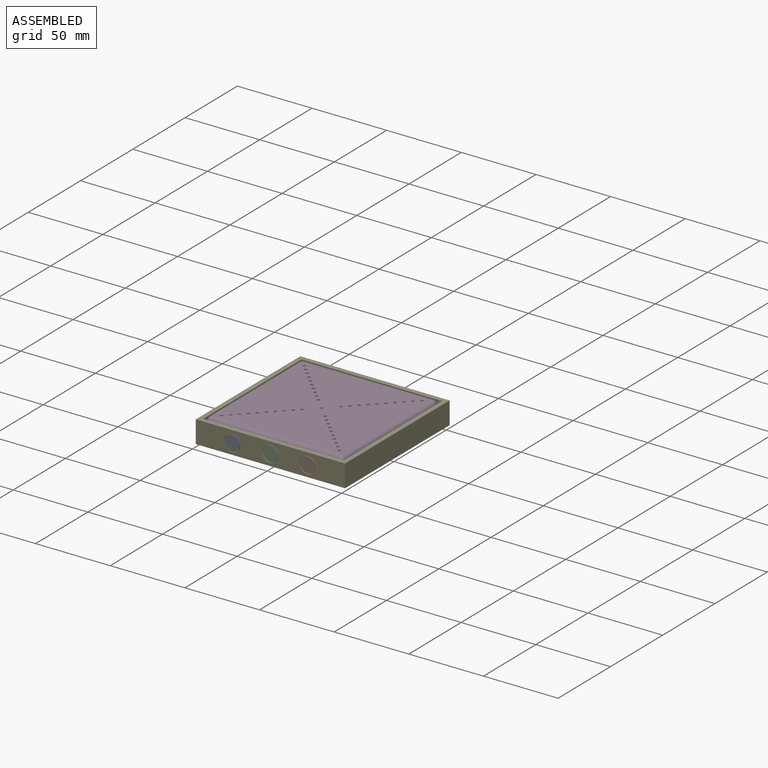
[diagram: assembled view]
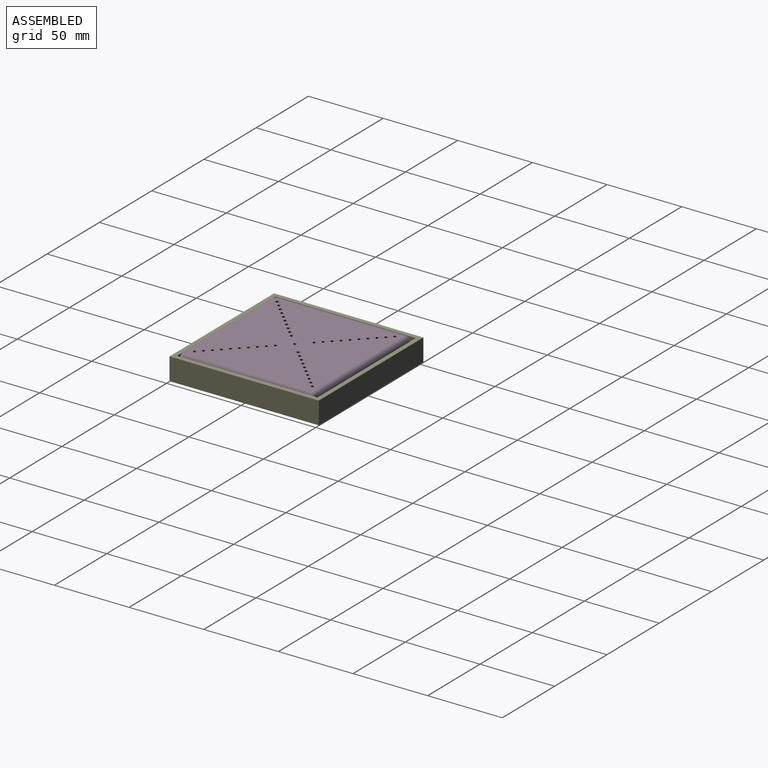
[diagram: assembled view, second angle]
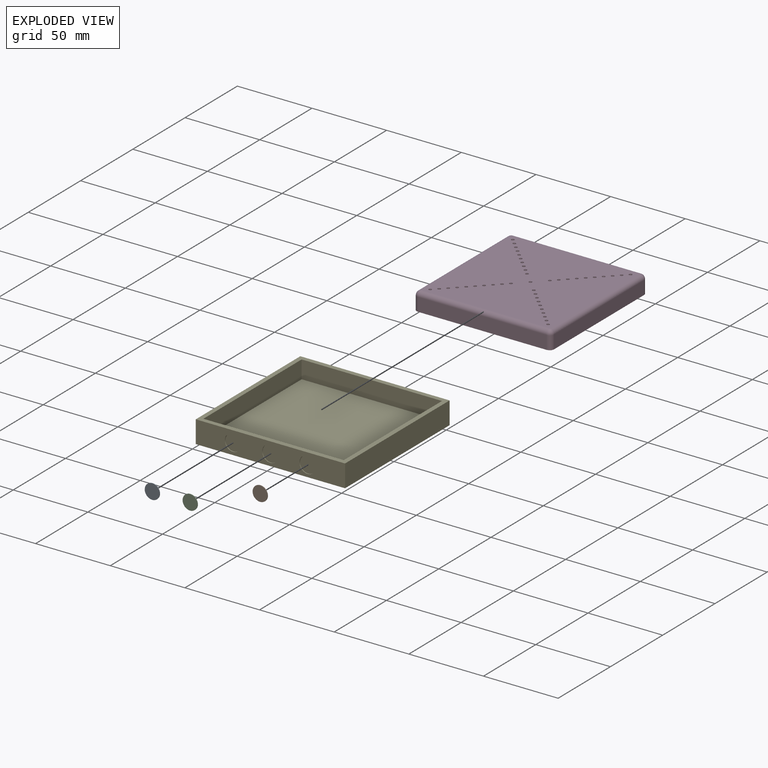
[diagram: exploded view]
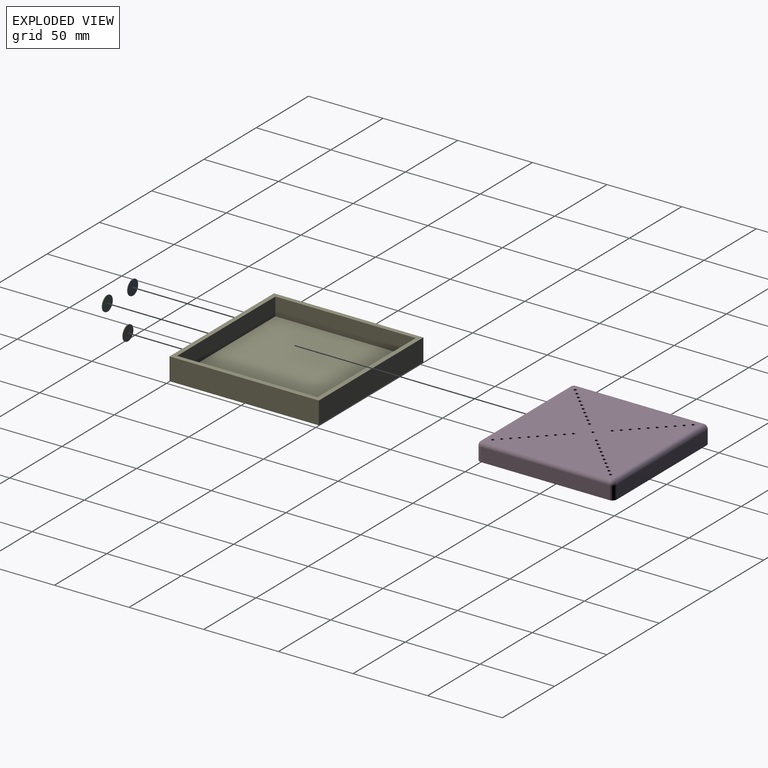
[diagram: exploded view, second angle]
ASSEMBLY  parts=5 mates=4
PART A: 3 faces, bbox 10x0.4x10 mm
  f0: cylinder r=5mm len=10mm, axis (0,1,0), area 12.6mm2, adj f1,f2
  f1: plane 10x10mm, normal (0,-1,0), area 78.5mm2, adj f0
  f2: plane 10x10mm, normal (0,1,0), area 78.5mm2, adj f0
PART B: same geometry as A
PART C: same geometry as A
PART D: 76 faces, bbox 92x92x12 mm
  f0: plane 86x86mm, normal (0,0,1), area 7267.2mm2, adj f10,f11,f15,f16,f35,f36,f37,f38
  f1: plane 86x86mm, normal (0,0,-1), area 7267.2mm2, adj f26,f27,f31,f32,f35,f36,f37,f38
  f2: plane 92x92mm, normal (0,0,-1), area 359.7mm2, adj f3,f4,f5,f6,f7,f9,f12,f18
  f3: plane 86x9mm, normal (0,-1,0), area 774mm2, adj f2,f9,f15,f18
  f4: plane 86x9mm, normal (1,0,0), area 774mm2, adj f2,f12,f16,f18
  f5: plane 86x9mm, normal (0,1,0), area 774mm2, adj f2,f7,f11,f12
  f6: plane 86x9mm, normal (-1,0,0), area 774mm2, adj f2,f7,f9,f10
  f7: cylinder r=3mm len=9mm, axis (0,0,1), area 42.4mm2, adj f2,f5,f6,f8
  f8: sphere r=3mm, area 14.1mm2, adj f7,f10,f11
  f9: cylinder r=3mm len=9mm, axis (0,0,-1), area 42.4mm2, adj f2,f3,f6,f13
  f10: cylinder r=3mm len=86mm, axis (0,1,0), area 405.3mm2, adj f0,f6,f8,f13
  f11: cylinder r=3mm len=86mm, axis (1,0,0), area 405.3mm2, adj f0,f5,f8,f14
  f12: cylinder r=3mm len=9mm, axis (0,0,-1), area 42.4mm2, adj f2,f4,f5,f14
  f13: sphere r=3mm, area 14.1mm2, adj f9,f10,f15
  f14: sphere r=3mm, area 14.1mm2, adj f11,f12,f16
  f15: cylinder r=3mm len=86mm, axis (-1,0,0), area 405.3mm2, adj f0,f3,f13,f17
  f16: cylinder r=3mm len=86mm, axis (0,-1,0), area 405.3mm2, adj f0,f4,f14,f17
  f17: sphere r=3mm, area 14.1mm2, adj f15,f16,f18
  f18: cylinder r=3mm len=9mm, axis (0,0,1), area 42.4mm2, adj f2,f3,f4,f17
  f19: plane 86x9mm, normal (0,1,0), area 774mm2, adj f2,f25,f31,f34
  f20: plane 86x9mm, normal (-1,0,0), area 774mm2, adj f2,f28,f32,f34
  f21: plane 86x9mm, normal (0,-1,0), area 774mm2, adj f2,f23,f27,f28
  f22: plane 86x9mm, normal (1,0,0), area 774mm2, adj f2,f23,f25,f26
  f23: cylinder r=2mm len=9mm, axis (0,0,1), area 28.3mm2, adj f2,f21,f22,f24
  f24: sphere r=2mm, area 6.3mm2, adj f23,f26,f27
  f25: cylinder r=2mm len=9mm, axis (0,0,-1), area 28.3mm2, adj f2,f19,f22,f29
  f26: cylinder r=2mm len=86mm, axis (0,1,0), area 270.2mm2, adj f1,f22,f24,f29
  f27: cylinder r=2mm len=86mm, axis (1,0,0), area 270.2mm2, adj f1,f21,f24,f30
  f28: cylinder r=2mm len=9mm, axis (0,0,-1), area 28.3mm2, adj f2,f20,f21,f30
  f29: sphere r=2mm, area 6.3mm2, adj f25,f26,f31
  f30: sphere r=2mm, area 6.3mm2, adj f27,f28,f32
  f31: cylinder r=2mm len=86mm, axis (-1,0,0), area 270.2mm2, adj f1,f19,f29,f33
  f32: cylinder r=2mm len=86mm, axis (0,-1,0), area 270.2mm2, adj f1,f20,f30,f33
  f33: sphere r=2mm, area 6.3mm2, adj f31,f32,f34
  f34: cylinder r=2mm len=9mm, axis (0,0,1), area 28.3mm2, adj f2,f19,f20,f33
  f35: cylinder r=1mm len=2mm, axis (0,0,1), area 6.3mm2, adj f0,f1
  f36: cylinder r=1mm len=2mm, axis (0,0,1), area 6.3mm2, adj f0,f1
  f37: cylinder r=1mm len=2mm, axis (0,0,1), area 6.3mm2, adj f0,f1
  f38: cylinder r=1mm len=2mm, axis (0,0,1), area 6.3mm2, adj f0,f1
  f39: cylinder r=1mm len=2mm, axis (0,0,1), area 6.3mm2, adj f0,f1
  f40: cylinder r=1mm len=2mm, axis (0,0,1), area 6.3mm2, adj f0,f1
  f41: cylinder r=1mm len=2mm, axis (0,0,1), area 6.3mm2, adj f0,f1
  f42: cylinder r=1mm len=2mm, axis (0,0,1), area 6.3mm2, adj f0,f1
  f43: cylinder r=1mm len=2mm, axis (0,0,1), area 6.3mm2, adj f0,f1
  f44: cylinder r=1mm len=2mm, axis (0,0,1), area 6.3mm2, adj f0,f1
  f45: cylinder r=1mm len=2mm, axis (0,0,1), area 6.3mm2, adj f0,f1
  f46: cylinder r=1mm len=2mm, axis (0,0,1), area 6.3mm2, adj f0,f1
  f47: cylinder r=1mm len=2mm, axis (0,0,1), area 6.3mm2, adj f0,f1
  f48: cylinder r=1mm len=2mm, axis (0,0,1), area 6.3mm2, adj f0,f1
  f49: cylinder r=1mm len=2mm, axis (0,0,1), area 6.3mm2, adj f0,f1
  f50: cylinder r=1mm len=2mm, axis (0,0,1), area 6.3mm2, adj f0,f1
  f51: cylinder r=1mm len=2mm, axis (0,0,1), area 6.3mm2, adj f0,f1
  f52: cylinder r=1mm len=2mm, axis (0,0,1), area 6.3mm2, adj f0,f1
  f53: cylinder r=1mm len=2mm, axis (0,0,1), area 6.3mm2, adj f0,f1
  f54: cylinder r=1mm len=2mm, axis (0,0,1), area 6.3mm2, adj f0,f1
  f55: cylinder r=1mm len=2mm, axis (0,0,1), area 6.3mm2, adj f0,f1
  f56: cylinder r=1mm len=2mm, axis (0,0,1), area 6.3mm2, adj f0,f1
  f57: cylinder r=1mm len=2mm, axis (0,0,1), area 6.3mm2, adj f0,f1
  f58: cylinder r=1mm len=2mm, axis (0,0,1), area 6.3mm2, adj f0,f1
  f59: cylinder r=1mm len=2mm, axis (0,0,1), area 6.3mm2, adj f0,f1
  f60: cylinder r=1mm len=2mm, axis (0,0,1), area 6.3mm2, adj f0,f1
  f61: cylinder r=1mm len=2mm, axis (0,0,1), area 6.3mm2, adj f0,f1
  f62: cylinder r=1mm len=2mm, axis (0,0,1), area 6.3mm2, adj f0,f1
  f63: cylinder r=1mm len=2mm, axis (0,0,1), area 6.3mm2, adj f0,f1
  f64: cylinder r=1mm len=2mm, axis (0,0,1), area 6.3mm2, adj f0,f1
  f65: cylinder r=1mm len=2mm, axis (0,0,1), area 6.3mm2, adj f0,f1
  f66: cylinder r=1mm len=2mm, axis (0,0,1), area 6.3mm2, adj f0,f1
  f67: cylinder r=1mm len=2mm, axis (0,0,1), area 6.3mm2, adj f0,f1
  f68: cylinder r=1mm len=2mm, axis (0,0,1), area 6.3mm2, adj f0,f1
  f69: cylinder r=1mm len=2mm, axis (0,0,1), area 6.3mm2, adj f0,f1
  f70: cylinder r=1mm len=2mm, axis (0,0,1), area 6.3mm2, adj f0,f1
  f71: cylinder r=1mm len=2mm, axis (0,0,1), area 6.3mm2, adj f0,f1
  f72: cylinder r=1mm len=2mm, axis (0,0,1), area 6.3mm2, adj f0,f1
  f73: cylinder r=1mm len=2mm, axis (0,0,1), area 6.3mm2, adj f0,f1
  f74: cylinder r=1mm len=2mm, axis (0,0,1), area 6.3mm2, adj f0,f1
  f75: cylinder r=1mm len=2mm, axis (0,0,1), area 6.3mm2, adj f0,f1
PART E: 17 faces, bbox 100x100x15 mm
  f0: plane 100x100mm, normal (0,0,1), area 1164mm2, adj f1,f2,f3,f4,f6,f7,f8,f9
  f1: plane 100x15mm, normal (0,-1,0), area 1214.9mm2, adj f0,f2,f4,f5,f11,f13,f15
  f2: plane 100x15mm, normal (1,0,0), area 1500mm2, adj f0,f1,f3,f5
  f3: plane 100x15mm, normal (0,1,0), area 1500mm2, adj f0,f2,f4,f5
  f4: plane 100x15mm, normal (-1,0,0), area 1500mm2, adj f0,f1,f3,f5
  f5: plane 100x100mm, normal (0,0,-1), area 10000mm2, adj f1,f2,f3,f4
  f6: plane 94x12mm, normal (0,1,0), area 1128mm2, adj f0,f7,f9,f10
  f7: plane 94x12mm, normal (-1,0,0), area 1128mm2, adj f0,f6,f8,f10
  f8: plane 94x12mm, normal (0,-1,0), area 1128mm2, adj f0,f7,f9,f10
  f9: plane 94x12mm, normal (1,0,0), area 1128mm2, adj f0,f6,f8,f10
  f10: plane 94x94mm, normal (0,0,1), area 8836mm2, adj f6,f7,f8,f9
  f11: cylinder r=5.5mm len=11mm, axis (0,-1,0), area 17.3mm2, adj f1,f12
  f12: plane 11x11mm, normal (0,-1,0), area 95mm2, adj f11
  f13: cylinder r=5.5mm len=11mm, axis (0,-1,0), area 17.3mm2, adj f1,f14
  f14: plane 11x11mm, normal (0,-1,0), area 95mm2, adj f13
  f15: cylinder r=5.5mm len=11mm, axis (0,-1,0), area 17.3mm2, adj f1,f16
  f16: plane 11x11mm, normal (0,-1,0), area 95mm2, adj f15
PLACE A t=(25.56,-47.56,6.57)mm
PLACE B t=(75.56,-47.06,6.57)mm
PLACE C t=(50.56,-47.06,6.57)mm
PLACE D t=(50.56,1.44,3.57)mm
PLACE E t=(50.56,2.44,-0.93)mm
MATE fastened A.f0 <-> E.f15  axis (0,1,0) through (25.56,-47.56,6.57)mm
MATE fastened C.f0 <-> E.f13  axis (0,1,0) through (50.56,-47.06,6.57)mm
MATE fastened B.f0 <-> E.f11  axis (0,1,0) through (75.56,-47.06,6.57)mm
MATE fastened E.f6 <-> D.f3  axis (0,1,0) through (50.56,-44.56,8.07)mm
